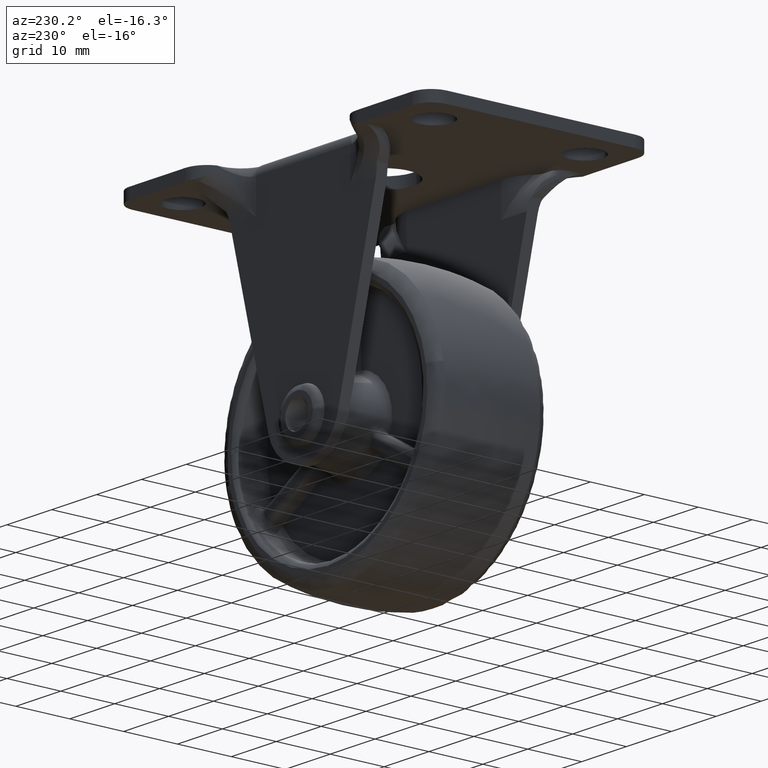
[diagram: clean part render]
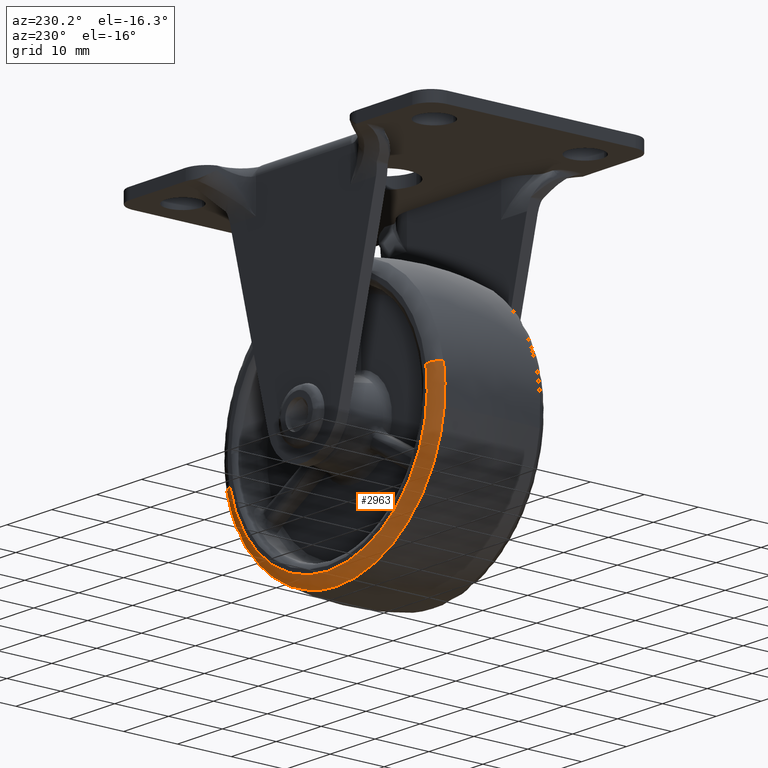
[diagram: same view with one face highlighted and labeled with its STEP entity id]
A machine part, auxiliary view. The second image highlights one B-rep face of the part: STEP entity #2963.
In plain terms, the highlighted face is a freeform B-spline surface patch.
Its self-contained STEP definition (entity closure, byte-faithful):
#2829=CARTESIAN_POINT('',(2.641199382105223,8.728836801556616,-43.801188153444556));
#2830=CARTESIAN_POINT('',(-2.364995886161382,8.728836801556618,-66.126836113315719));
#2831=CARTESIAN_POINT('',(-24.940416602853880,8.728836801556614,-62.405690139768545));
#2832=CARTESIAN_POINT('',(-48.846106742622403,8.728836801556613,-58.465273536914665));
#2833=CARTESIAN_POINT('',(-44.905690139768545,8.728836801556614,-34.559583397146127));
#2834=CARTESIAN_POINT('',(2.429093356260947,10.616169227220301,-43.753626524556523));
#2835=CARTESIAN_POINT('',(-2.532186924157954,10.616169227220299,-65.878971429297962));
#2836=CARTESIAN_POINT('',(-24.905063654287535,10.616169227220301,-62.191211134340037));
#2837=CARTESIAN_POINT('',(-48.596274788627547,10.616169227220297,-58.286147480052492));
#2838=CARTESIAN_POINT('',(-44.691211134340030,10.616169227220301,-34.594936345712455));
#2839=CARTESIAN_POINT('',(0.579030384813771,10.495994651161496,-43.338777355999284));
#2840=CARTESIAN_POINT('',(-3.990485656238125,10.495994651161494,-63.717008929621521));
#2841=CARTESIAN_POINT('',(-24.596702867206080,10.495994651161496,-60.320450204674479));
#2842=CARTESIAN_POINT('',(-46.417153071880556,10.495994651161494,-56.723747337468424));
#2843=CARTESIAN_POINT('',(-42.820450204674479,10.495994651161496,-34.903297132793909));
#2851=(BOUNDED_SURFACE()B_SPLINE_SURFACE(2,2,((#2829,#2834,#2839),(#2830,#2835,#2840),(#2831,#2836,#2841),(#2832,#2837,#2842),(#2833,#2838,#2843)),.UNSPECIFIED.,.F.,.F.,.U.)B_SPLINE_SURFACE_WITH_KNOTS((3,2,3),(3,3),(0.0,38.536998268324417,78.679704797829018),(0.0,3.193968659384179),.UNSPECIFIED.)GEOMETRIC_REPRESENTATION_ITEM()RATIONAL_B_SPLINE_SURFACE(((0.897059150246775,0.650663120990089,0.897789616734574),(0.659664944616895,0.478474191533643,0.660202103326090),(0.917702124649374,0.665636071377606,0.918449400509225),(0.648913395448875,0.470675779873478,0.649441799276792),(0.917702124649374,0.665636071377606,0.918449400509225)))REPRESENTATION_ITEM('')SURFACE());
#2852=CARTESIAN_POINT('',(2.623174043757711,8.854160903996812,-43.797146238802533));
#2853=VERTEX_POINT('',#2852);
#2854=CARTESIAN_POINT('',(-21.0,8.854157092801584,-62.709794778841641));
#2855=VERTEX_POINT('',#2854);
#2856=CARTESIAN_POINT('',(2.623174043757711,8.854160903996812,-43.797146238802526));
#2857=CARTESIAN_POINT('',(-1.617706165274392,8.854157092801584,-62.709794778841626));
#2858=CARTESIAN_POINT('',(-21.0,8.854157092801584,-62.709794778841641));
#2866=(BOUNDED_CURVE()B_SPLINE_CURVE(2,(#2856,#2857,#2858),.UNSPECIFIED.,.F.,.U.)B_SPLINE_CURVE_WITH_KNOTS((3,3),(0.287436169801422,0.500000000000000),.UNSPECIFIED.)CURVE()GEOMETRIC_REPRESENTATION_ITEM()RATIONAL_B_SPLINE_CURVE((0.925416961810218,0.750965982279289,1.0))REPRESENTATION_ITEM(''));
#2867=EDGE_CURVE('',#2853,#2855,#2866,.T.);
#2868=ORIENTED_EDGE('',*,*,#2867,.T.);
#2869=CARTESIAN_POINT('',(-45.047873707745012,8.854167481399959,-41.295325180226357));
#2870=VERTEX_POINT('',#2869);
#2871=CARTESIAN_POINT('',(-21.0,8.854157092801584,-62.709794778841641));
#2872=CARTESIAN_POINT('',(-42.558655733468783,8.854162287100772,-62.709793909080631));
#2873=CARTESIAN_POINT('',(-45.047873707745005,8.854167481399959,-41.295325180226364));
#2881=(BOUNDED_CURVE()B_SPLINE_CURVE(2,(#2871,#2872,#2873),.UNSPECIFIED.,.F.,.U.)B_SPLINE_CURVE_WITH_KNOTS((3,3),(0.500000000000000,0.730000280662495),.UNSPECIFIED.)CURVE()GEOMETRIC_REPRESENTATION_ITEM()RATIONAL_B_SPLINE_CURVE((1.0,0.730537909875057,0.956886670603229))REPRESENTATION_ITEM(''));
#2882=EDGE_CURVE('',#2855,#2870,#2881,.T.);
#2883=ORIENTED_EDGE('',*,*,#2882,.T.);
#2884=CARTESIAN_POINT('',(-44.887462520763023,8.854166666744089,-34.562587887344193));
#2885=VERTEX_POINT('',#2884);
#2886=CARTESIAN_POINT('',(-45.047873707745005,8.854167481399959,-41.295325180226364));
#2887=CARTESIAN_POINT('',(-45.209793056249403,8.854166666666659,-39.902352183224849));
#2888=CARTESIAN_POINT('',(-45.209793056249403,8.854166666666659,-38.500000000000000));
#2889=CARTESIAN_POINT('',(-45.209793056249410,8.854166666666659,-36.518100382612822));
#2890=CARTESIAN_POINT('',(-44.887462520763016,8.854166666744089,-34.562587887344193));
#2898=(BOUNDED_CURVE()B_SPLINE_CURVE(2,(#2886,#2887,#2888,#2889,#2890),.UNSPECIFIED.,.F.,.U.)B_SPLINE_CURVE_WITH_KNOTS((3,2,3),(0.730000280662495,0.750000000000000,0.777993891200999),.UNSPECIFIED.)CURVE()GEOMETRIC_REPRESENTATION_ITEM()RATIONAL_B_SPLINE_CURVE((0.956886670603229,0.976568871311490,1.0,0.967203116396104,0.941751131922921))REPRESENTATION_ITEM(''));
#2899=EDGE_CURVE('',#2870,#2885,#2898,.T.);
#2900=ORIENTED_EDGE('',*,*,#2899,.T.);
#2901=CARTESIAN_POINT('',(-42.945278738289879,10.499999999999940,-34.882721427607883));
#2902=VERTEX_POINT('',#2901);
#2903=CARTESIAN_POINT('',(-44.887462520763009,8.854166666744089,-34.562587887344186));
#2904=CARTESIAN_POINT('',(-44.595275580748535,10.499999433891306,-34.610749570345000));
#2905=CARTESIAN_POINT('',(-42.945278738289879,10.499999999999943,-34.882721427607876));
#2913=(BOUNDED_CURVE()B_SPLINE_CURVE(2,(#2903,#2904,#2905),.UNSPECIFIED.,.F.,.U.)B_SPLINE_CURVE_WITH_KNOTS((3,3),(-1.706834311595426,-0.290855988661071),.UNSPECIFIED.)CURVE()GEOMETRIC_REPRESENTATION_ITEM()RATIONAL_B_SPLINE_CURVE((0.895847631379867,0.687523838269028,0.896528364337535))REPRESENTATION_ITEM(''));
#2914=EDGE_CURVE('',#2885,#2902,#2913,.T.);
#2915=ORIENTED_EDGE('',*,*,#2914,.T.);
#2916=CARTESIAN_POINT('',(-21.0,10.500000000000000,-60.741402000000001));
#2917=VERTEX_POINT('',#2916);
#2918=CARTESIAN_POINT('',(-21.0,10.500000000000000,-60.741402000000001));
#2919=CARTESIAN_POINT('',(-43.241402000000001,10.500000000000002,-60.741402000000015));
#2920=CARTESIAN_POINT('',(-43.241402000000001,10.500000000000000,-38.500000000000000));
#2921=CARTESIAN_POINT('',(-43.241402000000001,10.500000000000000,-36.679239863100058));
#2922=CARTESIAN_POINT('',(-42.945278738289879,10.499999999999943,-34.882721427607869));
#2930=(BOUNDED_CURVE()B_SPLINE_CURVE(2,(#2918,#2919,#2920,#2921,#2922),.UNSPECIFIED.,.F.,.U.)B_SPLINE_CURVE_WITH_KNOTS((3,2,3),(0.500000000000000,0.750000000000000,0.777993891204353),.UNSPECIFIED.)CURVE()GEOMETRIC_REPRESENTATION_ITEM()RATIONAL_B_SPLINE_CURVE((1.0,0.707106781186548,1.0,0.967203116392173,0.941751131916821))REPRESENTATION_ITEM(''));
#2931=EDGE_CURVE('',#2917,#2902,#2930,.T.);
#2932=ORIENTED_EDGE('',*,*,#2931,.F.);
#2933=CARTESIAN_POINT('',(0.702477825028461,10.499999999999940,-43.366458612889460));
#2934=VERTEX_POINT('',#2933);
#2935=CARTESIAN_POINT('',(0.702477825028461,10.499999999999943,-43.366458612889460));
#2936=CARTESIAN_POINT('',(-3.193595411683575,10.500000000000000,-60.741402000000001));
#2937=CARTESIAN_POINT('',(-21.0,10.500000000000000,-60.741402000000001));
#2945=(BOUNDED_CURVE()B_SPLINE_CURVE(2,(#2935,#2936,#2937),.UNSPECIFIED.,.F.,.U.)B_SPLINE_CURVE_WITH_KNOTS((3,3),(0.287436176726317,0.500000000000000),.UNSPECIFIED.)CURVE()GEOMETRIC_REPRESENTATION_ITEM()RATIONAL_B_SPLINE_CURVE((0.925416950443704,0.750965990392309,1.0))REPRESENTATION_ITEM(''));
#2946=EDGE_CURVE('',#2934,#2917,#2945,.T.);
#2947=ORIENTED_EDGE('',*,*,#2946,.F.);
#2948=CARTESIAN_POINT('',(2.623174043757711,8.854160903996812,-43.797146238802533));
#2949=CARTESIAN_POINT('',(2.334224020039119,10.499999433690659,-43.732353483659757));
#2950=CARTESIAN_POINT('',(0.702477825028461,10.499999999999943,-43.366458612889460));
#2958=(BOUNDED_CURVE()B_SPLINE_CURVE(2,(#2948,#2949,#2950),.UNSPECIFIED.,.F.,.U.)B_SPLINE_CURVE_WITH_KNOTS((3,3),(-1.706837501584386,-0.290855988792453),.UNSPECIFIED.)CURVE()GEOMETRIC_REPRESENTATION_ITEM()RATIONAL_B_SPLINE_CURVE((0.875697173835555,0.672058079847162,0.876361676679395))REPRESENTATION_ITEM(''));
#2959=EDGE_CURVE('',#2853,#2934,#2958,.T.);
#2960=ORIENTED_EDGE('',*,*,#2959,.F.);
#2961=EDGE_LOOP('',(#2868,#2883,#2900,#2915,#2932,#2947,#2960));
#2962=FACE_OUTER_BOUND('',#2961,.T.);
#2963=ADVANCED_FACE('',(#2962),#2851,.T.);